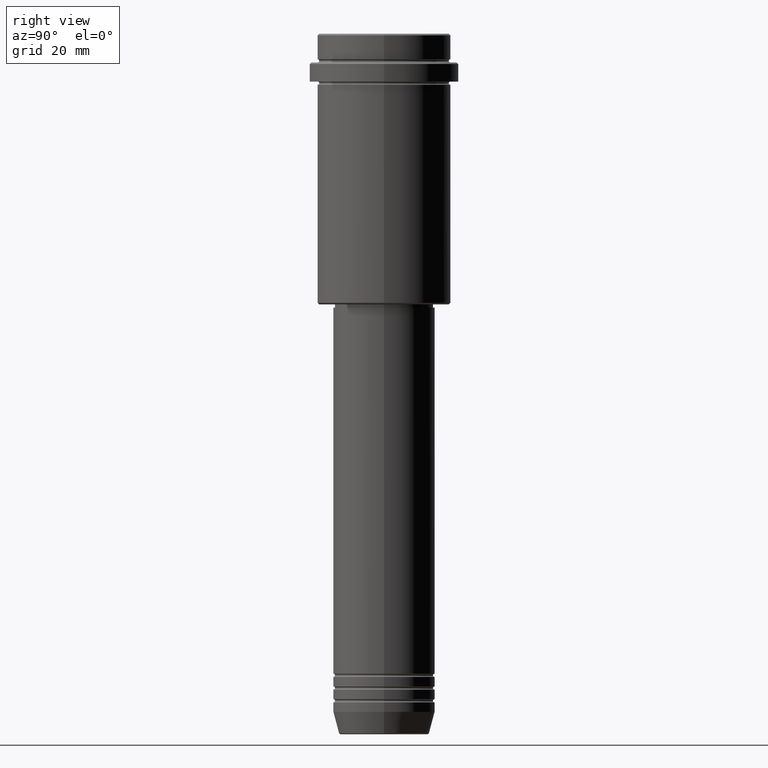
[diagram: clean part render]
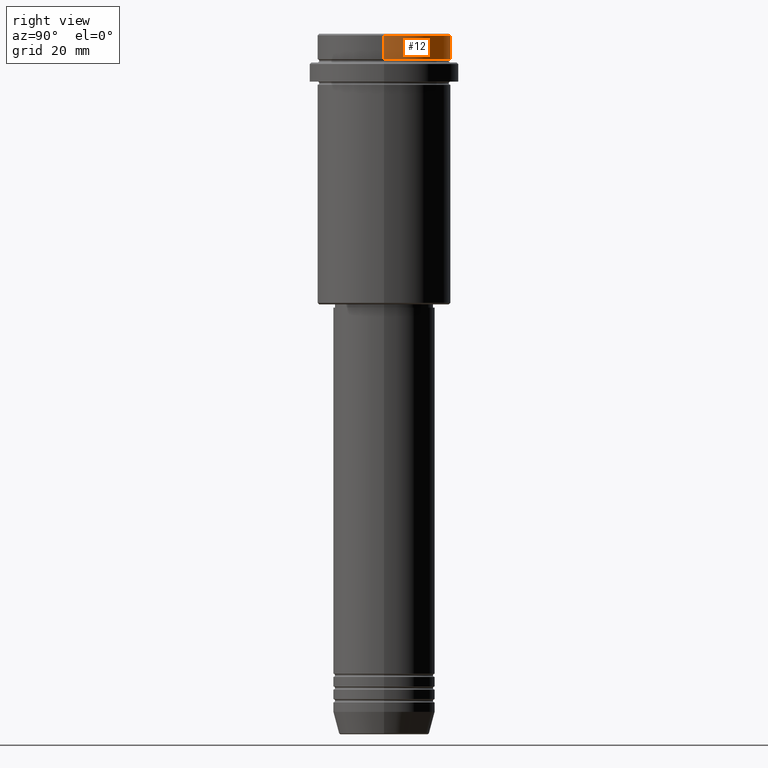
[diagram: same view with one face highlighted and labeled with its STEP entity id]
A machine part, right view. The second image highlights one B-rep face of the part: STEP entity #12.
In plain terms, the highlighted cylindrical surface (partial cylindrical patch) has radius 21 mm, axis along (-0, -0, 1).
Its self-contained STEP definition (entity closure, byte-faithful):
#12 = ADVANCED_FACE ( 'NONE', ( #949 ), #266, .T. ) ;
#25 = VERTEX_POINT ( 'NONE', #716 ) ;
#79 = EDGE_CURVE ( 'NONE', #626, #1006, #613, .T. ) ;
#95 = LINE ( 'NONE', #754, #1036 ) ;
#139 = CIRCLE ( 'NONE', #896, 20.99999999999999645 ) ;
#150 = LINE ( 'NONE', #798, #334 ) ;
#154 = CARTESIAN_POINT ( 'NONE',  ( 0.000000000000000000, 0.000000000000000000, 0.000000000000000000 ) ) ;
#170 = DIRECTION ( 'NONE',  ( 1.000000000000000000, 0.000000000000000000, 0.000000000000000000 ) ) ;
#195 = DIRECTION ( 'NONE',  ( -0.000000000000000000, -0.000000000000000000, 1.000000000000000000 ) ) ;
#228 = DIRECTION ( 'NONE',  ( 1.000000000000000000, 0.000000000000000000, 0.000000000000000000 ) ) ;
#235 = EDGE_CURVE ( 'NONE', #907, #626, #95, .T. ) ;
#266 = CYLINDRICAL_SURFACE ( 'NONE', #759, 20.99999999999999645 ) ;
#276 = DIRECTION ( 'NONE',  ( -0.000000000000000000, -0.000000000000000000, 1.000000000000000000 ) ) ;
#334 = VECTOR ( 'NONE', #1227, 1000.000000000000000 ) ;
#426 = ORIENTED_EDGE ( 'NONE', *, *, #235, .T. ) ;
#443 = CARTESIAN_POINT ( 'NONE',  ( 0.000000000000000000, 0.000000000000000000, -7.999999999999998224 ) ) ;
#576 = DIRECTION ( 'NONE',  ( -0.000000000000000000, -0.000000000000000000, 1.000000000000000000 ) ) ;
#613 = CIRCLE ( 'NONE', #1035, 20.99999999999999645 ) ;
#626 = VERTEX_POINT ( 'NONE', #1277 ) ;
#716 = CARTESIAN_POINT ( 'NONE',  ( 20.99999999999999645, 0.000000000000000000, -7.999999999999998224 ) ) ;
#754 = CARTESIAN_POINT ( 'NONE',  ( -20.99999999999999645, 2.571758278209441267E-15, 0.000000000000000000 ) ) ;
#759 = AXIS2_PLACEMENT_3D ( 'NONE', #154, #276, #1149 ) ;
#798 = CARTESIAN_POINT ( 'NONE',  ( 20.99999999999999645, 0.000000000000000000, 0.000000000000000000 ) ) ;
#833 = DIRECTION ( 'NONE',  ( 0.000000000000000000, 0.000000000000000000, -1.000000000000000000 ) ) ;
#835 = ORIENTED_EDGE ( 'NONE', *, *, #1190, .T. ) ;
#896 = AXIS2_PLACEMENT_3D ( 'NONE', #443, #576, #228 ) ;
#907 = VERTEX_POINT ( 'NONE', #1250 ) ;
#949 = FACE_OUTER_BOUND ( 'NONE', #962, .T. ) ;
#962 = EDGE_LOOP ( 'NONE', ( #835, #426, #1353, #1399 ) ) ;
#974 = EDGE_CURVE ( 'NONE', #25, #1006, #150, .T. ) ;
#1006 = VERTEX_POINT ( 'NONE', #1417 ) ;
#1035 = AXIS2_PLACEMENT_3D ( 'NONE', #1361, #833, #170 ) ;
#1036 = VECTOR ( 'NONE', #195, 1000.000000000000000 ) ;
#1149 = DIRECTION ( 'NONE',  ( 1.000000000000000000, 0.000000000000000000, 0.000000000000000000 ) ) ;
#1190 = EDGE_CURVE ( 'NONE', #25, #907, #139, .T. ) ;
#1227 = DIRECTION ( 'NONE',  ( -0.000000000000000000, -0.000000000000000000, 1.000000000000000000 ) ) ;
#1250 = CARTESIAN_POINT ( 'NONE',  ( -20.99999999999999645, 2.571758278209441267E-15, -7.999999999999998224 ) ) ;
#1277 = CARTESIAN_POINT ( 'NONE',  ( -20.99999999999999645, 2.571758278209441267E-15, -0.5000000000000073275 ) ) ;
#1353 = ORIENTED_EDGE ( 'NONE', *, *, #79, .T. ) ;
#1361 = CARTESIAN_POINT ( 'NONE',  ( 0.000000000000000000, 0.000000000000000000, -0.5000000000000073275 ) ) ;
#1399 = ORIENTED_EDGE ( 'NONE', *, *, #974, .F. ) ;
#1417 = CARTESIAN_POINT ( 'NONE',  ( 20.99999999999999645, 0.000000000000000000, -0.5000000000000073275 ) ) ;